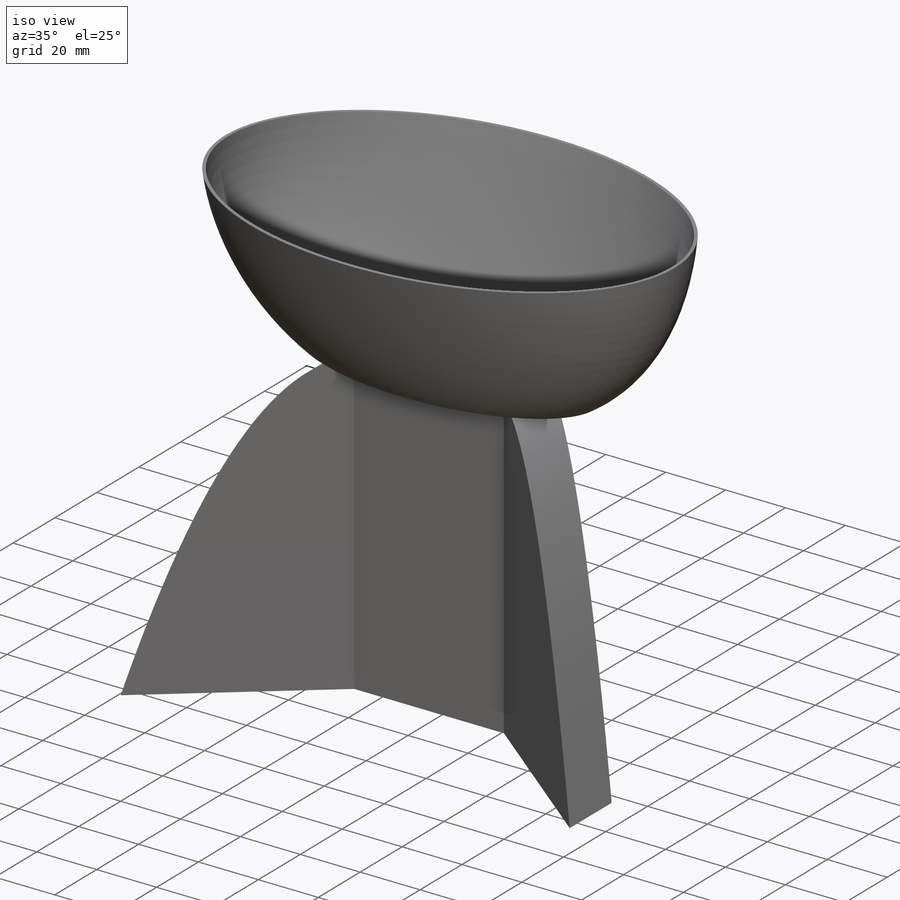
[diagram: iso view]
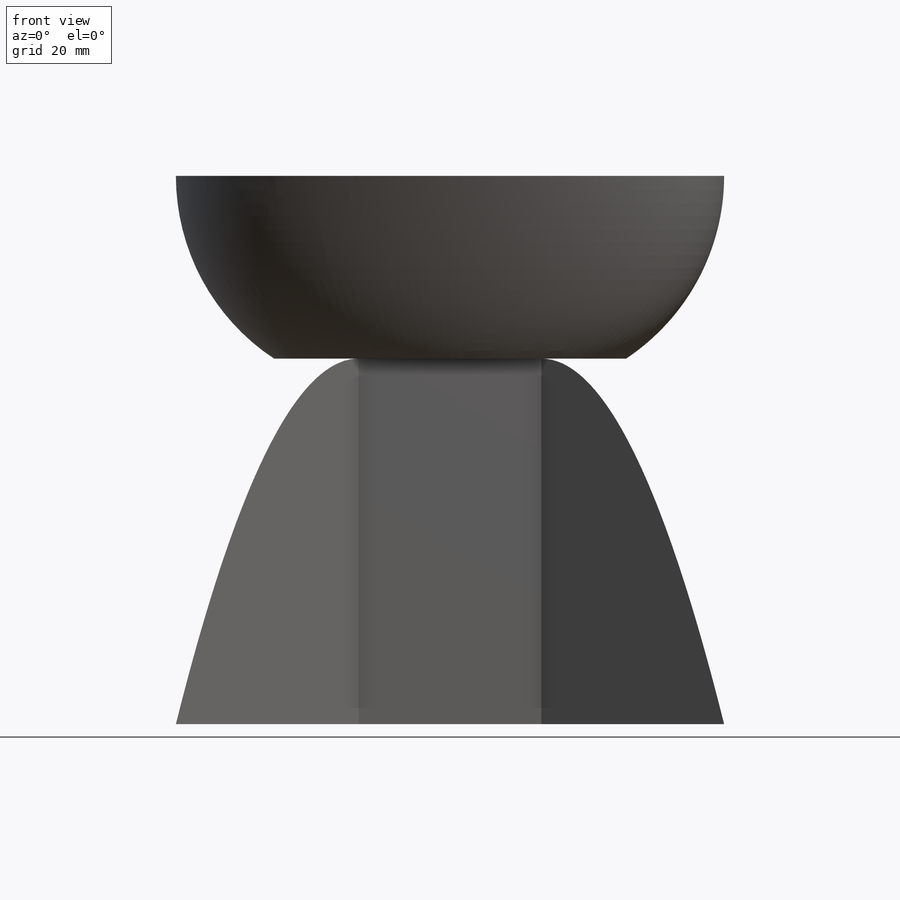
[diagram: front view]
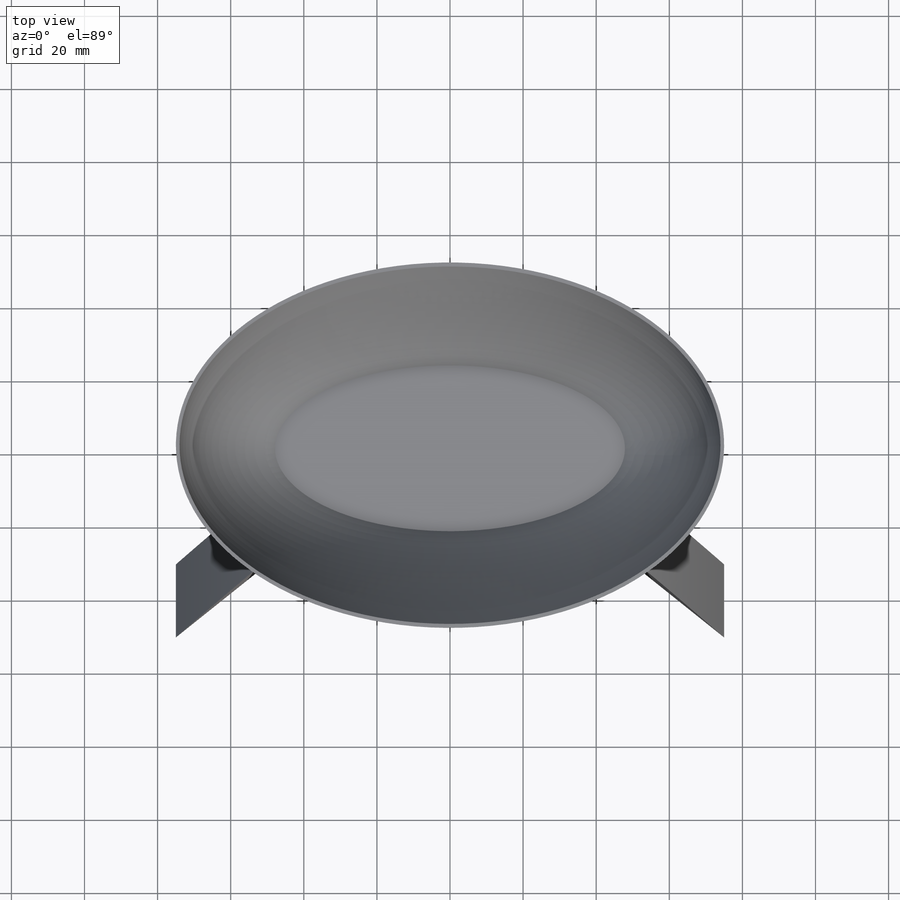
[diagram: top view]
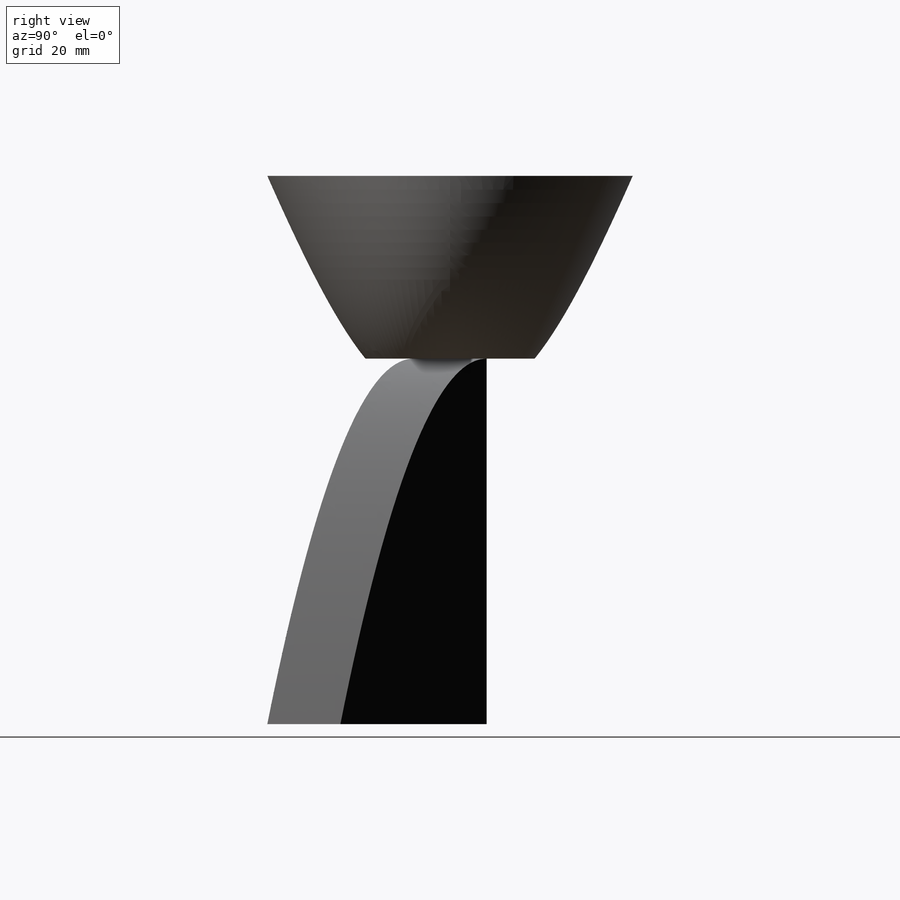
[diagram: right view]
SOLIDWORKS PART (.sldprt)
format: sldprt  version: not decoded by parser v0  size: 403,456 bytes
history: native  units: mm
features: sketch x5, material x1, extrude x1, cut_extrude x1, plane x1, shell x1, boolean_combine x1 (+16 scaffold rows collapsed)
feature tree (27):
  scaffold x16  (default folders/planes/origin — collapsed)
  material  "Material <not specified>"
  sketch  "Sketch1"  dims[D1=50.0mm D2=25.0mm D3=20.0mm D4=10.0mm D5=50.0mm D6=75.0mm]
  extrude  "Extrude1"  Depth=100mm
  sketch  "Sketch2"
  cut_extrude  "Extrude2"  [1 undecoded]
  plane  "Plane1"  Offset=50mm
  sketch  "Sketch3"  dims[D1=50.0mm D2=75.0mm]
  sketch  "Sketch4"  dims[D1=23.17mm D2=48.17mm]
  sketch  "Sketch5"
  shell  "Shell1"  Thickness=1mm
  boolean_combine  "Combine1"
decode coverage: 5 of 9 modeling features carry decoded parameters
note: 1 parameter value undecoded
note: suppression state not decoded; provenance and decode notes live in map.json
